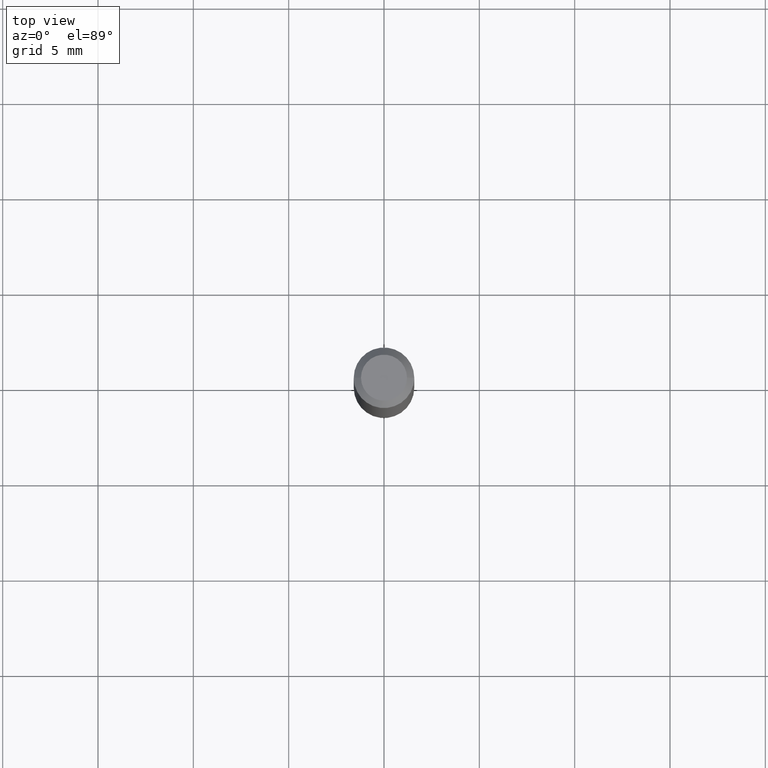
[diagram: clean part render]
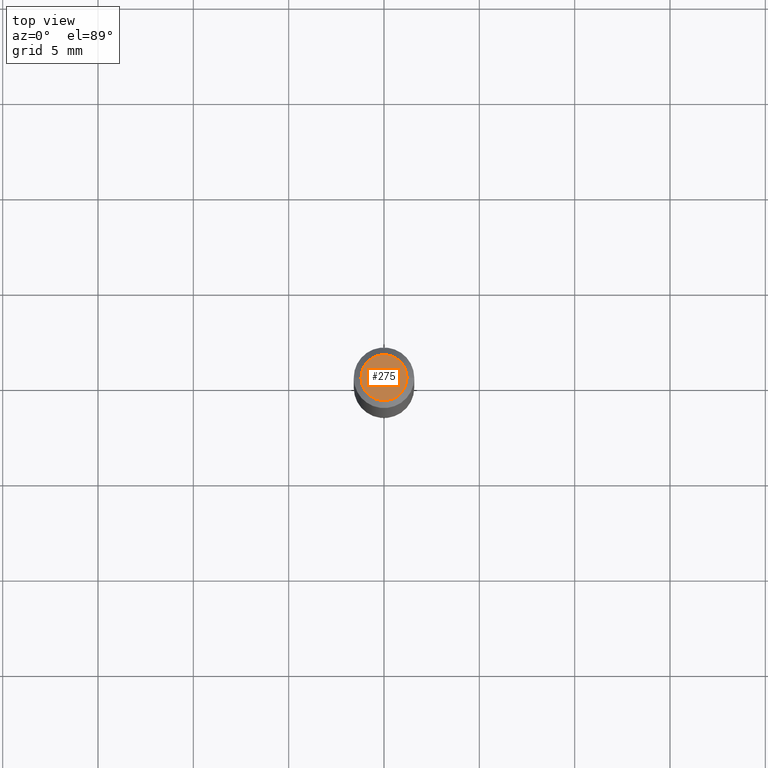
[diagram: same view with one face highlighted and labeled with its STEP entity id]
A machine part, top view. The second image highlights one B-rep face of the part: STEP entity #275.
In plain terms, the highlighted planar face has unit normal (0, -0, -1).
Its self-contained STEP definition (entity closure, byte-faithful):
#10 = AXIS2_PLACEMENT_3D ( 'NONE', #141, #282, #102 ) ;
#22 = DIRECTION ( 'NONE',  ( -2.445468806185136597E-29, 3.491481338843145583E-15, 1.000000000000000000 ) ) ;
#49 = CARTESIAN_POINT ( 'NONE',  ( -3.350520365439544480E-45, 4.783655101941405986E-31, 1.370093274943982539E-16 ) ) ;
#70 = CIRCLE ( 'NONE', #195, 0.04749999999999999362 ) ;
#74 = VERTEX_POINT ( 'NONE', #269 ) ;
#99 = CARTESIAN_POINT ( 'NONE',  ( -3.350520365439544480E-45, 4.783655101941405986E-31, 1.370093274943982539E-16 ) ) ;
#102 = DIRECTION ( 'NONE',  ( -1.000000000000000000, 6.982962677686265922E-15, -4.876176775795935793E-29 ) ) ;
#141 = CARTESIAN_POINT ( 'NONE',  ( 3.316907271900976096E-16, 0.04749999999999999362, -9.734069984785028182E-17 ) ) ;
#169 = ORIENTED_EDGE ( 'NONE', *, *, #337, .T. ) ;
#195 = AXIS2_PLACEMENT_3D ( 'NONE', #99, #213, #387 ) ;
#206 = DIRECTION ( 'NONE',  ( 1.000000000000000000, -6.982962677686267499E-15, 4.852736867747366768E-29 ) ) ;
#213 = DIRECTION ( 'NONE',  ( -2.445468806185136597E-29, 3.491481338843145583E-15, 1.000000000000000000 ) ) ;
#250 = EDGE_CURVE ( 'NONE', #413, #74, #70, .T. ) ;
#265 = AXIS2_PLACEMENT_3D ( 'NONE', #49, #22, #206 ) ;
#269 = CARTESIAN_POINT ( 'NONE',  ( 0.04749999999999999362, -4.035134999187576158E-16, 1.370093274944008177E-16 ) ) ;
#275 = ADVANCED_FACE ( 'NONE', ( #331 ), #459, .F. ) ;
#277 = CIRCLE ( 'NONE', #265, 0.04749999999999999362 ) ;
#282 = DIRECTION ( 'NONE',  ( 2.438088387897960049E-29, -3.491481338843145188E-15, -1.000000000000000000 ) ) ;
#331 = FACE_OUTER_BOUND ( 'NONE', #446, .T. ) ;
#337 = EDGE_CURVE ( 'NONE', #74, #413, #277, .T. ) ;
#348 = ORIENTED_EDGE ( 'NONE', *, *, #250, .T. ) ;
#354 = CARTESIAN_POINT ( 'NONE',  ( -0.04749999999999999362, 3.578768372314212971E-16, 1.370093274943958627E-16 ) ) ;
#387 = DIRECTION ( 'NONE',  ( 1.000000000000000000, -6.982962677686267499E-15, 4.852736867747366768E-29 ) ) ;
#413 = VERTEX_POINT ( 'NONE', #354 ) ;
#446 = EDGE_LOOP ( 'NONE', ( #348, #169 ) ) ;
#459 = PLANE ( 'NONE',  #10 ) ;